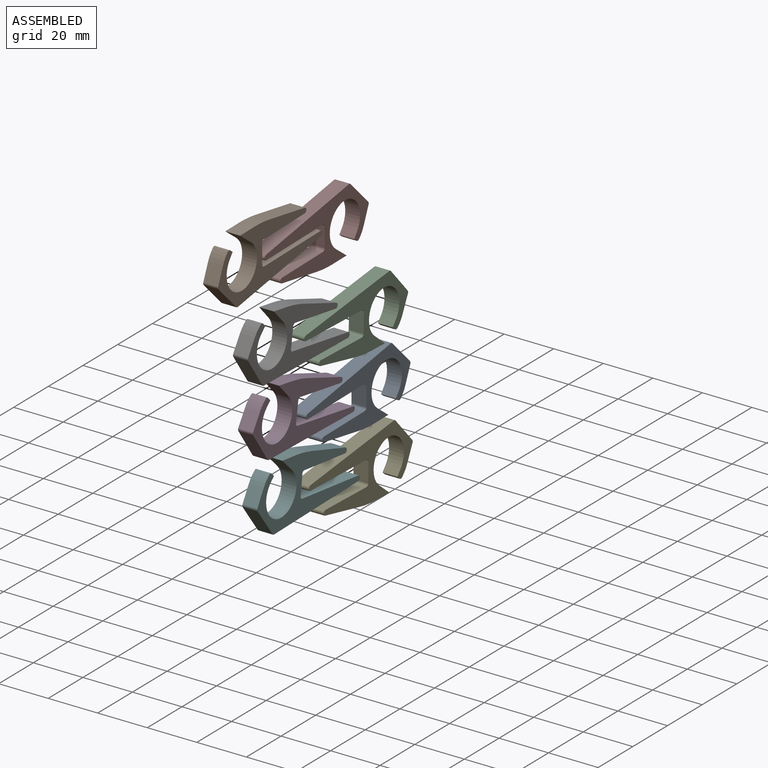
[diagram: assembled view]
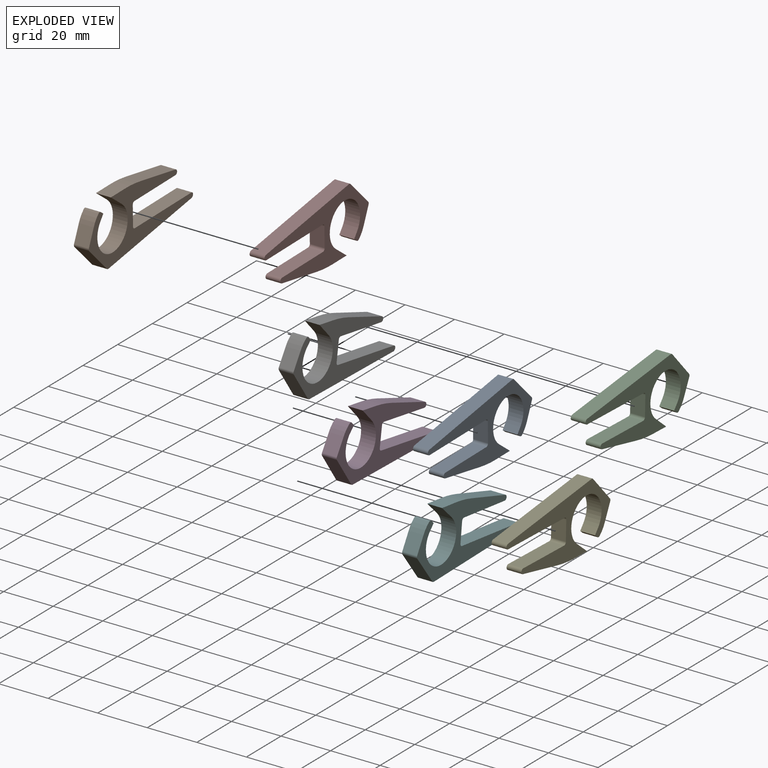
[diagram: exploded view]
GUIDED TOUR — MATED ASSEMBLY (Onshape document 57a725f205b6412f9cc70086, AutoMate assembly 57a725f205b6412f9cc70086_81580b5af0e51fa667f71f60_95b7362a37f1b61afd1b6911_default)

This assembly has 8 components, labeled P0..P7 below (a component is one placed occurrence of a part; the same part can appear more than once), held together by 1 mate. A mate is a constraint between two components; its type names the relative motion it leaves free:
  PLANAR — leaves sliding in the plane through the listed point (normal = the listed direction) and rotation about that normal free.
Axis/direction vectors are unit vectors and 'through' points are millimeter coordinates, both in the assembly's world frame.

MATES
  1. PLANAR "Planar 1": P1 <-> P7, direction (-1.000, 0.000, 0.000) through (-13.82, 75.87, 50.52) mm

ASSEMBLY ORDER
  1. P7 — the base component [order verified]
  2. P1 [order verified]
  3. P6 [order verified]
  4. P3 [order verified]
  5. P0 [order verified]
  6. P5 [order verified]
  7. P4 [order verified]
  8. P2 [order verified]
Order-tag legend:
  [order verified] — this step's position reverses a verified removal order: the component was checked to insert without passing through the ones already placed.

Of the 8 components, 8 carry the full construction recipe — the FeatureScript program that regenerates the part's solid from scratch; the rest are supplied as boundary geometry only.
Each toured component is shown spotlighted twice — in the assembled view, then in the exploded view, where a leader line traces a displaced component back to its assembled socket (saturated green if recipe-attached, orange if geometry-only; every other component desaturated gray) — followed by its recipe or geometry summary and the mates that hold it.
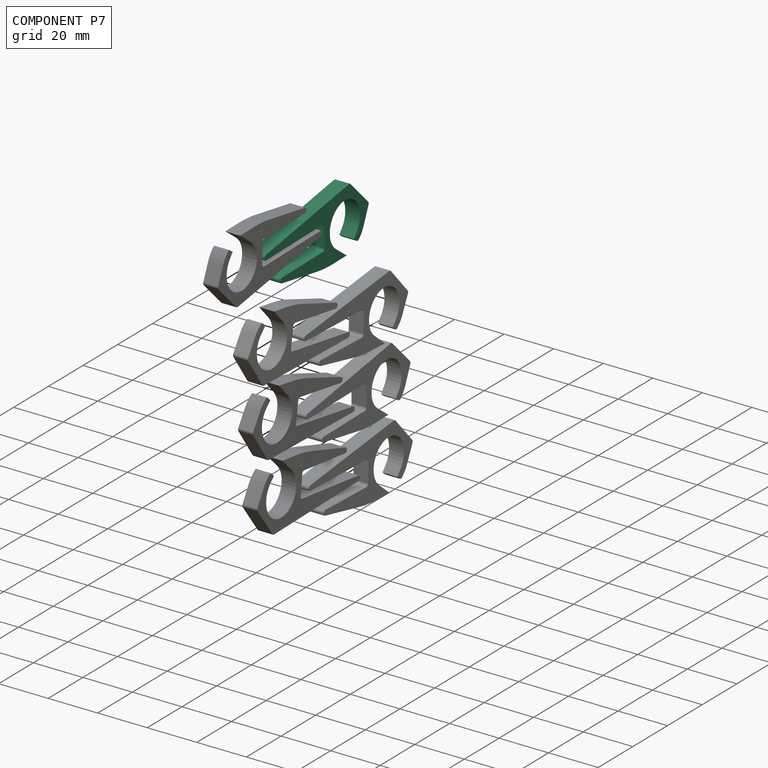
[diagram: component P7 — assembled]
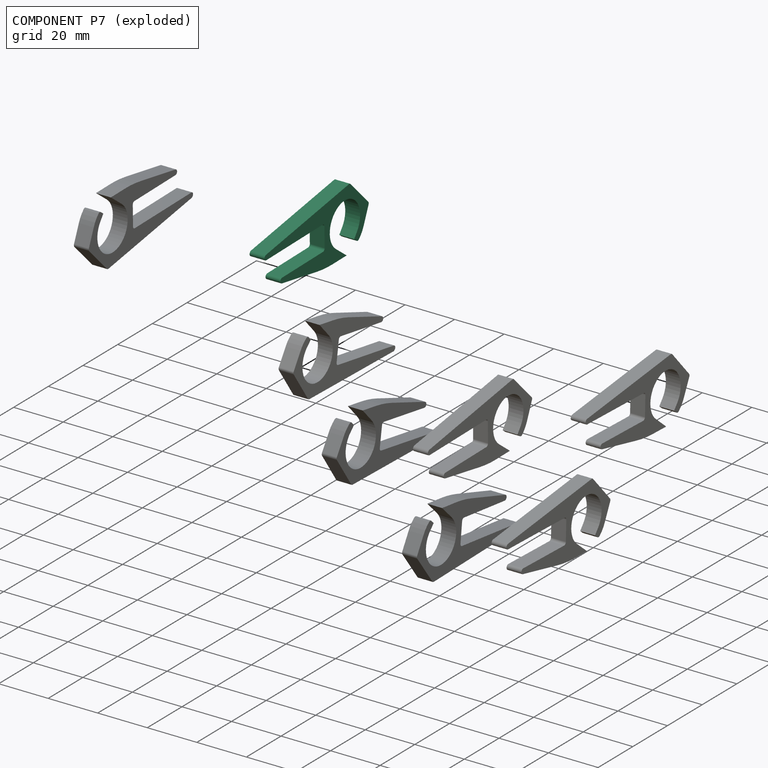
[diagram: component P7 — exploded]
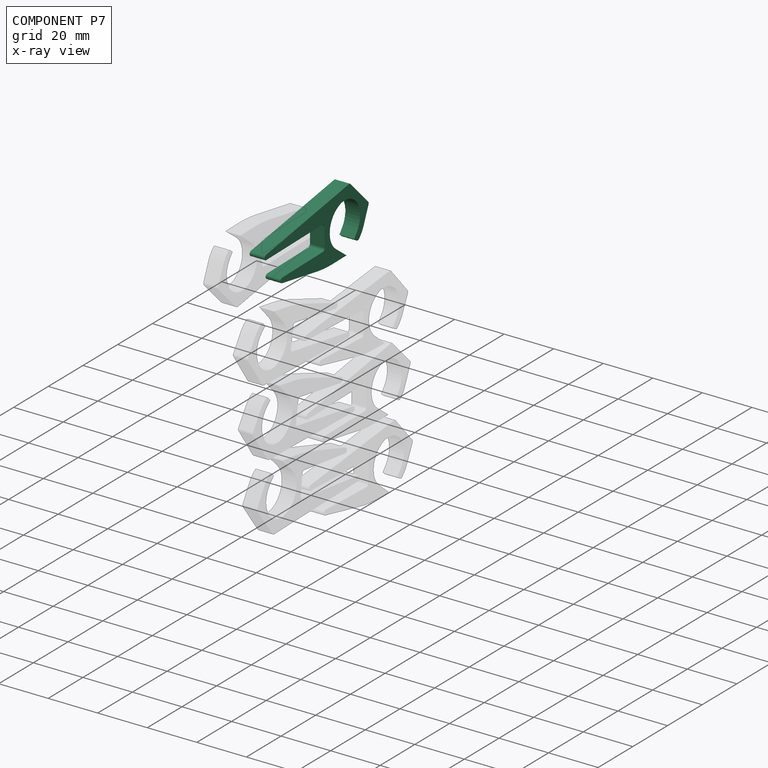
[diagram: component P7 — x-ray view]
COMPONENT P7 — same part as P0 (CADFS 00857104); its construction recipe is shown at P0.
Held by: PLANAR mate "Planar 1" to P1.
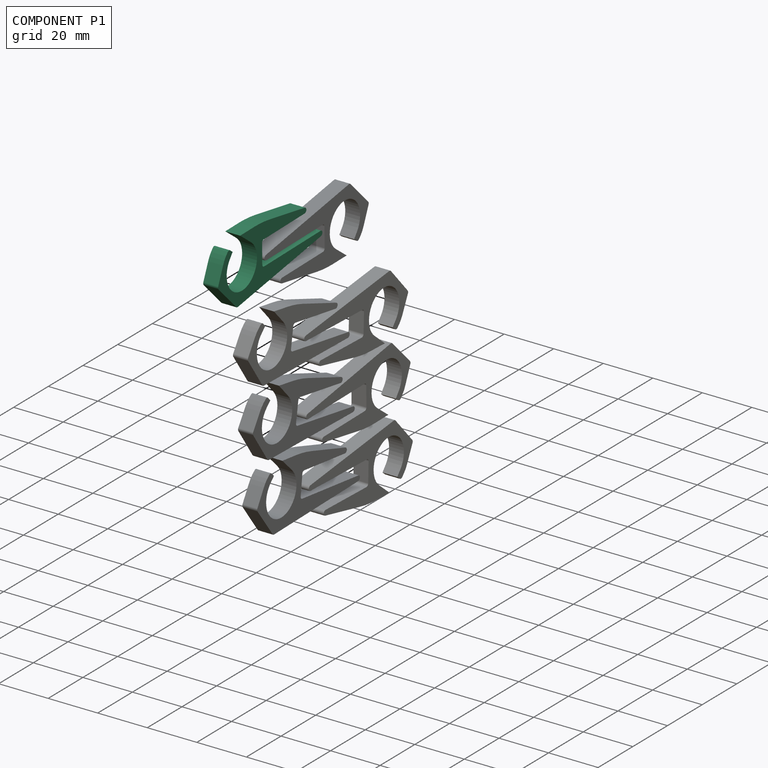
[diagram: component P1 — assembled]
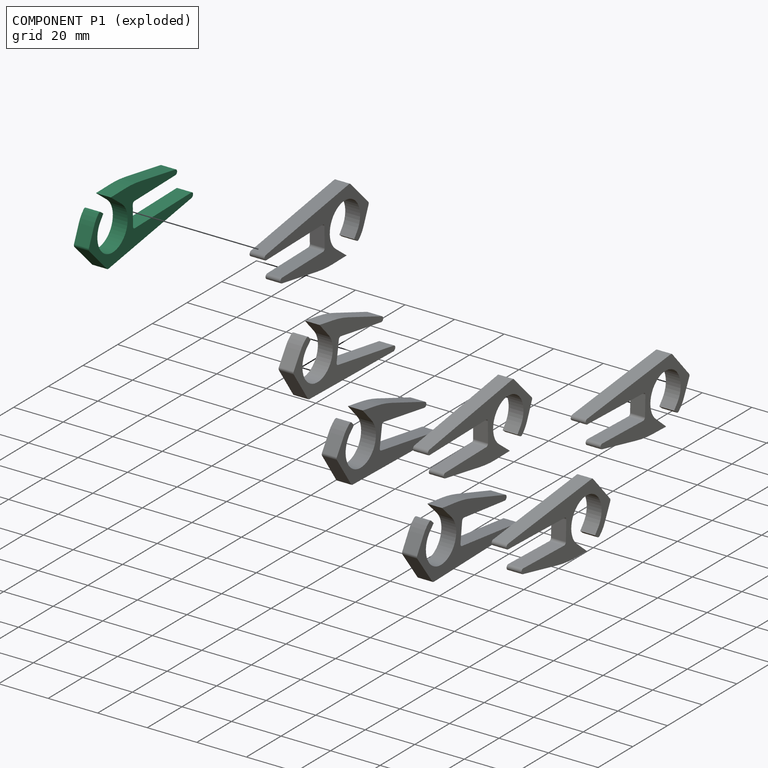
[diagram: component P1 — exploded]
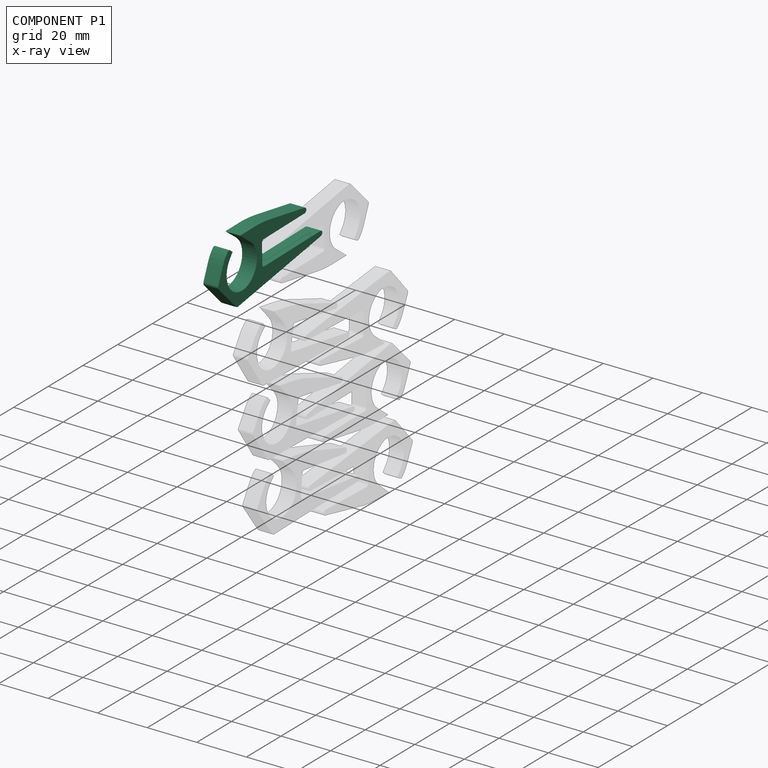
[diagram: component P1 — x-ray view]
COMPONENT P1 — same part as P0 (CADFS 00857104); its construction recipe is shown at P0.
Held by: PLANAR mate "Planar 1" to P7.
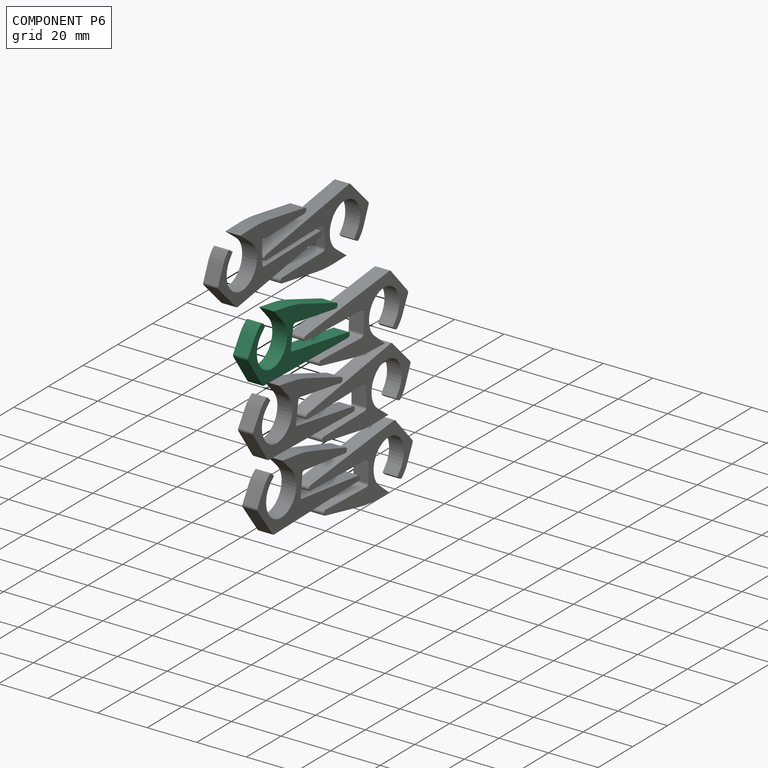
[diagram: component P6 — assembled]
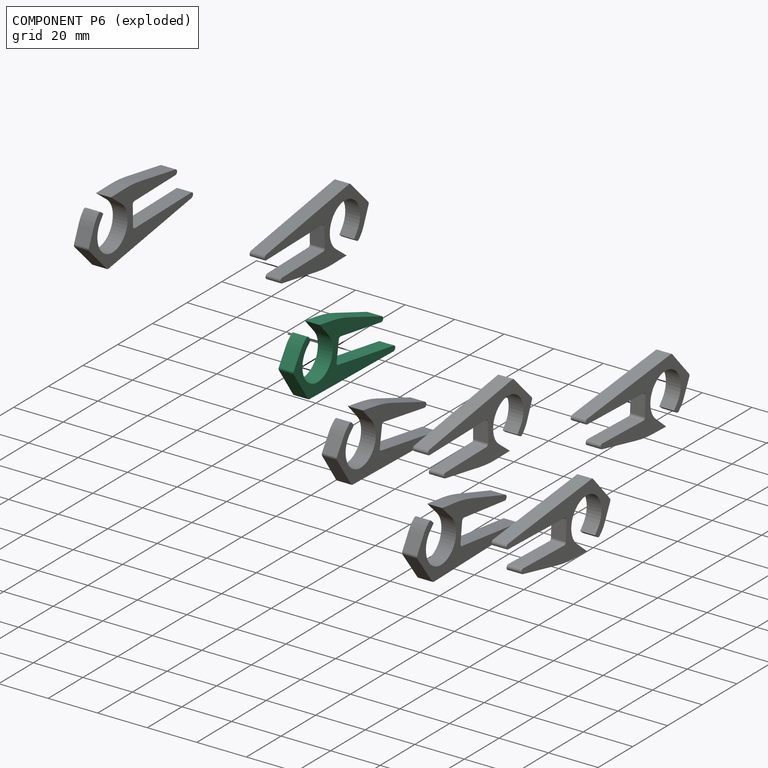
[diagram: component P6 — exploded]
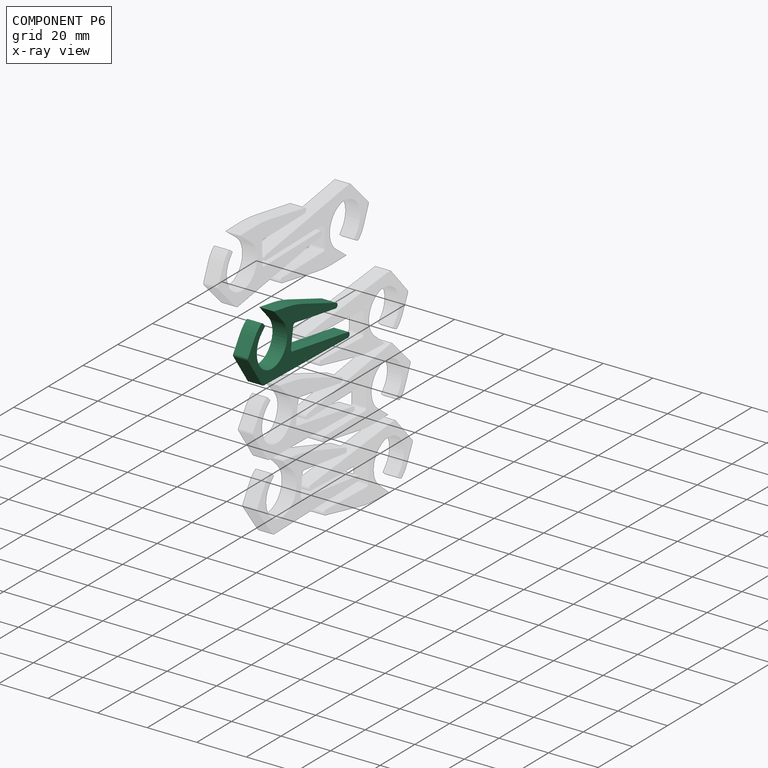
[diagram: component P6 — x-ray view]
COMPONENT P6 — same part as P0 (CADFS 00857104); its construction recipe is shown at P0.
Held by: no mates (free).
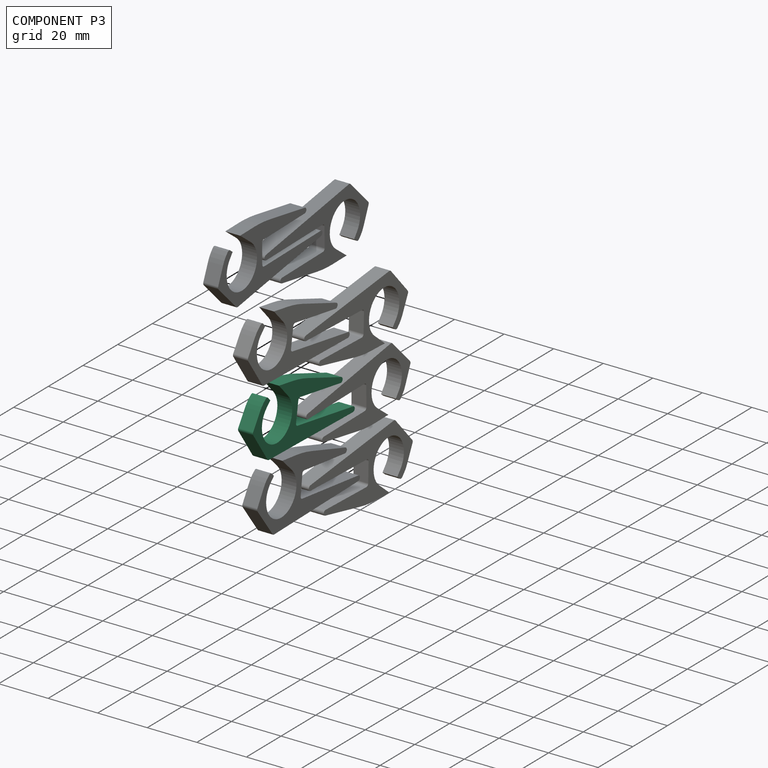
[diagram: component P3 — assembled]
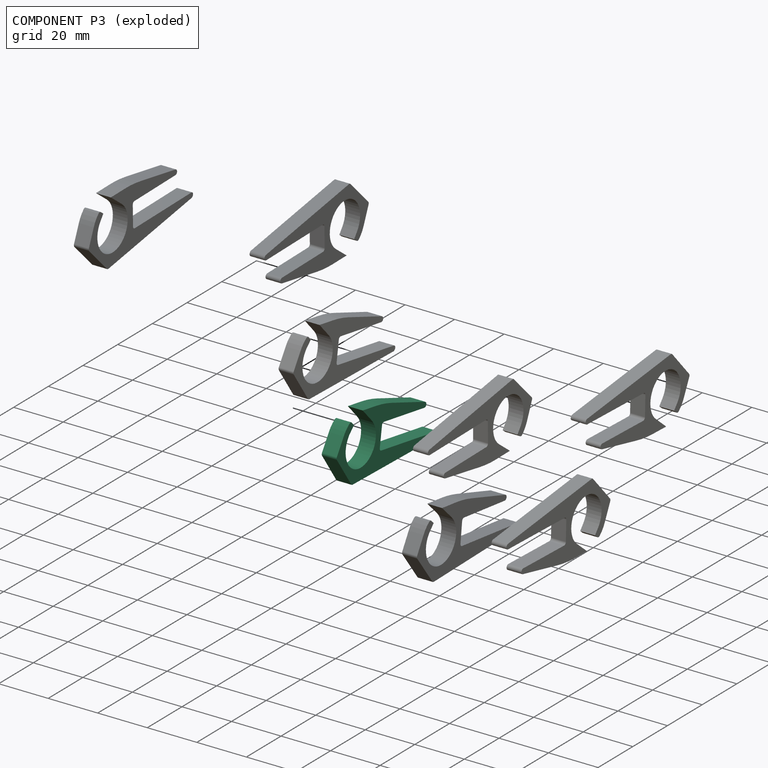
[diagram: component P3 — exploded]
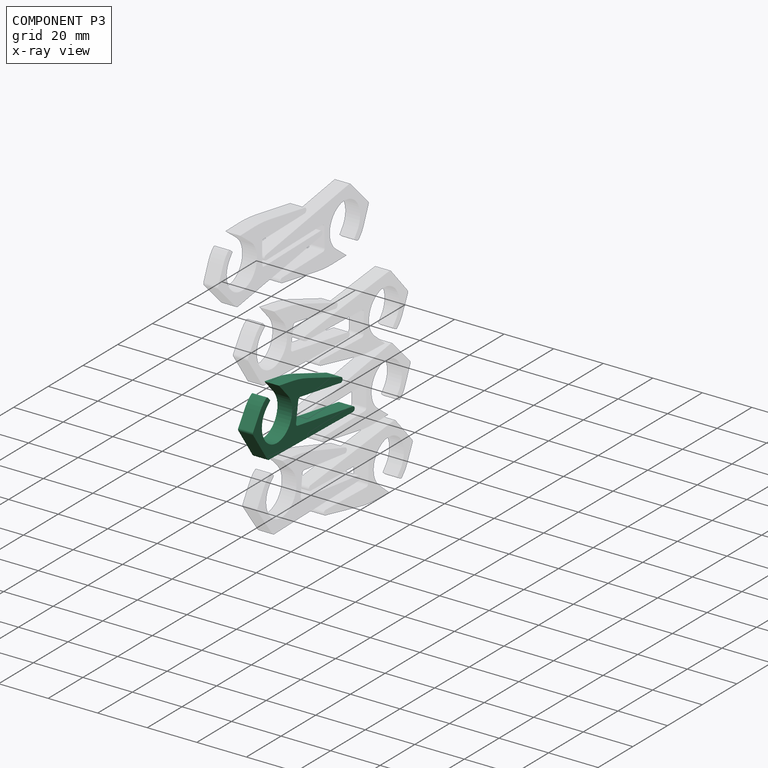
[diagram: component P3 — x-ray view]
COMPONENT P3 — same part as P0 (CADFS 00857104); its construction recipe is shown at P0.
Held by: no mates (free).
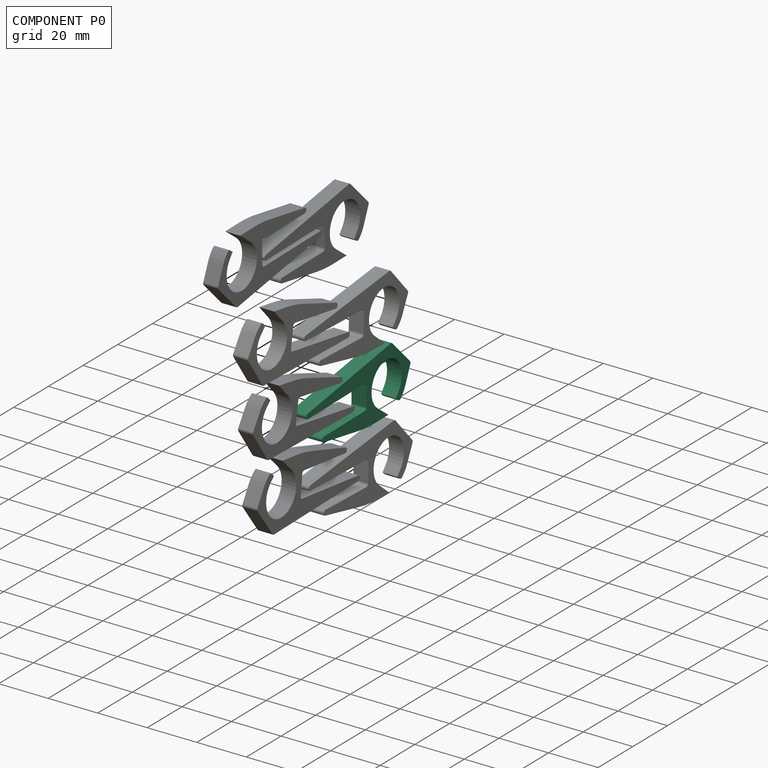
[diagram: component P0 — assembled]
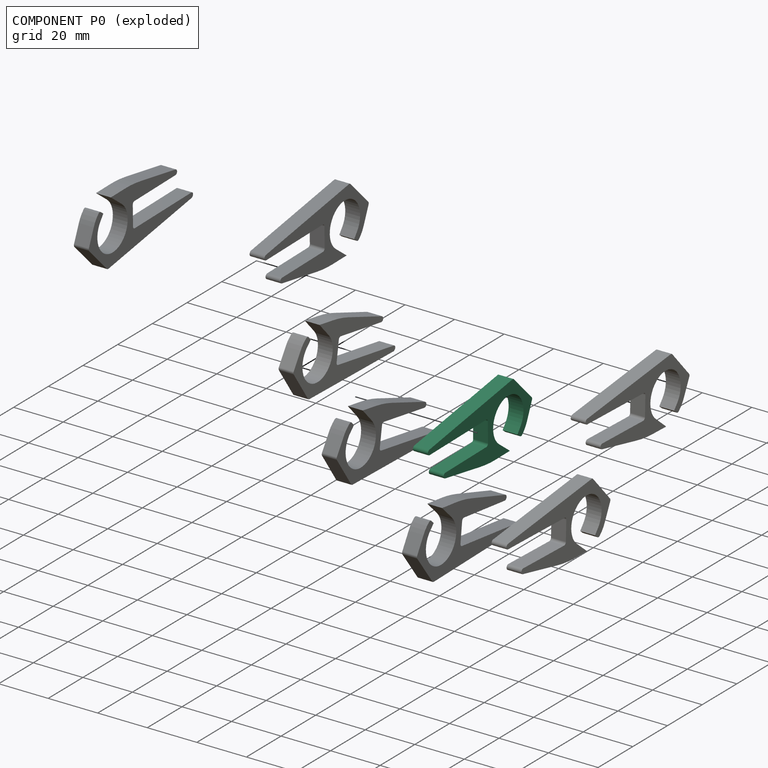
[diagram: component P0 — exploded]
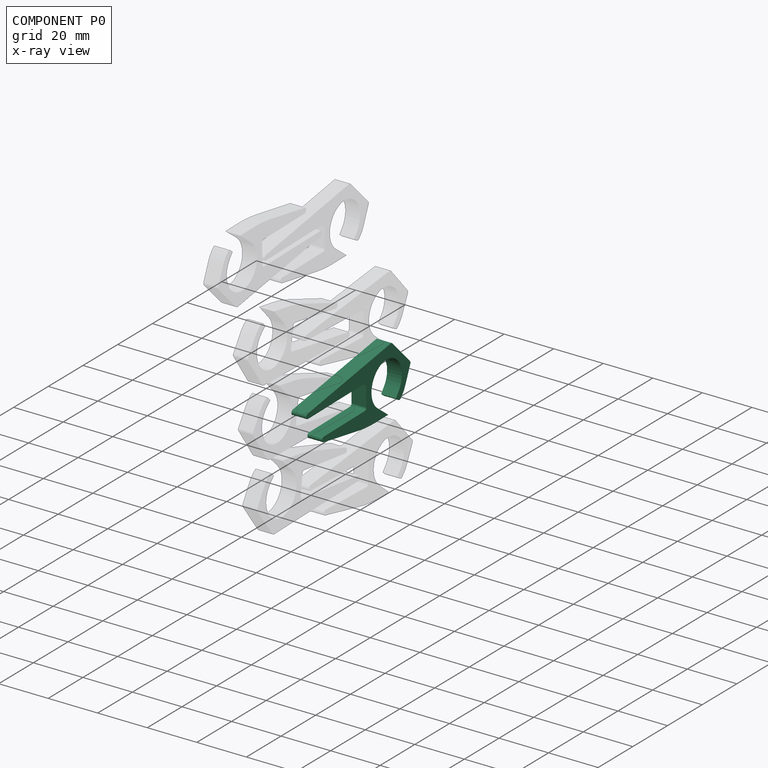
[diagram: component P0 — x-ray view]
COMPONENT P0 — recipe-attached (CADFS 00857104, mesh-verified: the recipe's output STEP matches this component's geometry to below the mesh-comparison resolution (tessellation chordal tolerance ~0.0997 mm)).
Held by: no mates (free).
Construction recipe (FeatureScript — the CAD program that rebuilds this solid; sketch coordinates are in the units given by the * unit suffixes, e.g. mm):

FeatureScript 1511;
import(path : "onshape/std/geometry.fs", version : "1511.0");
import(path : "onshape/std/common.fs", version : "1511.0");
const mm = millimeter;
const VERTEX = EntityType.VERTEX;
const EDGE = EntityType.EDGE;
const FACE = EntityType.FACE;
const BODY = EntityType.BODY;
function v(x, y){return vector(x, y);}
function OD(order){return orderDisambiguation(order);}
function OSD(set){return originalSetDisambiguation(set);}
function TD(topology){return topologyDisambiguation(topology);}
function TDD(query){return trueDependencyDisambiguation(query);}
function sQuery(a, b, c) {return sketchEntityQuery(a, b, c);}

annotation { "Feature Type Name" : "Feature", "Feature Type Description" : "" }
export const myFeature = defineFeature(function(context is Context, id is Id, definition is map)
    precondition{}
    {
        {
            var Q0;
            Q0=qCreatedBy(makeId("Right.planeOp"),FACE);
            var sketch = newSketch(context, id + "F0", { "sketchPlane" : qUnion([Q0])});
            skArc(sketch, "E0", {"start": v(-8.75, 0) * mm, "mid": v(6.19, -6.19) * mm, "end": v(0, 8.75) * mm});
            skLineSegment(sketch, "E1.bottom", {"start": v(0, 8.75) * mm, "end": v(-122.25, 8.75) * mm, "construction": true});
            skLineSegment(sketch, "E1.top", {"start": v(-11.75, 5.75) * mm, "end": v(-122.25, 5.75) * mm, "construction": true});
            skLineSegment(sketch, "E1.right", {"start": v(-122.25, 8.75) * mm, "end": v(-122.25, 5.75) * mm, "construction": true});
            skLineSegment(sketch, "E2", {"start": v(8.75, 0) * mm, "end": v(8.75, 20.78) * mm, "construction": true});
            skLineSegment(sketch, "E3", {"start": v(-8.75, 0) * mm, "end": v(-8.75, 2.75) * mm, "construction": true});
            skPoint(sketch, "E4.visualSharp", {"position": v(-8.75, 5.75) * mm});
            skArc(sketch, "E4.filletArc", {"start": v(-8.75, 2.75) * mm, "mid": v(-9.63, 4.87) * mm, "end": v(-11.75, 5.75) * mm, "construction": true});
            skLineSegment(sketch, "E5", {"start": v(-122.25, 5.75) * mm, "end": v(120.77, -23.2) * mm, "construction": true});
            skArc(sketch, "E6", {"start": v(-6.66, 9.68) * mm, "mid": v(-7.27, 9.23) * mm, "end": v(-7.84, 8.75) * mm});
            skLineSegment(sketch, "E7", {"start": v(0, 0) * mm, "end": v(69.32, 54.56) * mm, "construction": true});
            skLineSegment(sketch, "E8", {"start": v(6.93, 11.81) * mm, "end": v(25.46, 26.4) * mm});
            skLineSegment(sketch, "E9", {"start": v(13.11, 3.96) * mm, "end": v(38.72, 24.11) * mm});
            skLineSegment(sketch, "E10", {"start": v(-7.84, 8.75) * mm, "end": v(-1.7, 13.58) * mm});
            skLineSegment(sketch, "E11", {"start": v(6.76, 10.41) * mm, "end": v(11.7, 4.12) * mm});
            skArc(sketch, "E12.trimOffspring", {"start": v(9.23, 7.27) * mm, "mid": v(9, 7.56) * mm, "end": v(8.75, 7.84) * mm});
            skArc(sketch, "E13.filletArc", {"start": v(6.93, 11.81) * mm, "mid": v(6.55, 11.15) * mm, "end": v(6.76, 10.41) * mm});
            skArc(sketch, "E14.filletArc", {"start": v(11.7, 4.12) * mm, "mid": v(12.37, 3.75) * mm, "end": v(13.11, 3.96) * mm});
            skLineSegment(sketch, "E15", {"start": v(24.96, 28.18) * mm, "end": v(24.85, 28.2) * mm});
            skLineSegment(sketch, "E16", {"start": v(40.33, 23.2) * mm, "end": v(40.32, 23.13) * mm});
            skLineSegment(sketch, "E17", {"start": v(6.14, 18.64) * mm, "end": v(24.27, 28.09) * mm});
            skLineSegment(sketch, "E18", {"start": v(16.49, -1.95) * mm, "end": v(40.05, 22.55) * mm});
            skLineSegment(sketch, "E19", {"start": v(11.7, 4.12) * mm, "end": v(16.49, -1.95) * mm, "construction": true});
            skLineSegment(sketch, "E20", {"start": v(6.76, 10.41) * mm, "end": v(1.98, 16.48) * mm, "construction": true});
            skPoint(sketch, "E21.visualSharp", {"position": v(24.55, 28.23) * mm});
            skArc(sketch, "E21.filletArc", {"start": v(24.85, 28.2) * mm, "mid": v(24.56, 28.18) * mm, "end": v(24.27, 28.09) * mm});
            skPoint(sketch, "E22.visualSharp", {"position": v(27.36, 27.9) * mm});
            skArc(sketch, "E22.filletArc", {"start": v(25.46, 26.4) * mm, "mid": v(25.8, 27.46) * mm, "end": v(24.96, 28.18) * mm});
            skPoint(sketch, "E23.visualSharp", {"position": v(40.61, 25.6) * mm});
            skArc(sketch, "E23.filletArc", {"start": v(40.33, 23.2) * mm, "mid": v(39.82, 24.2) * mm, "end": v(38.72, 24.11) * mm});
            skPoint(sketch, "E24.visualSharp", {"position": v(40.28, 22.8) * mm});
            skArc(sketch, "E24.filletArc", {"start": v(40.05, 22.55) * mm, "mid": v(40.23, 22.82) * mm, "end": v(40.32, 23.13) * mm});
            skPoint(sketch, "E25.visualSharp", {"position": v(1.98, 16.48) * mm});
            skArc(sketch, "E25.filletArc", {"start": v(6.14, 18.64) * mm, "mid": v(2.1, 16.3) * mm, "end": v(-1.7, 13.58) * mm});
            skLineSegment(sketch, "E26", {"start": v(0, 8.75) * mm, "end": v(-7.84, 8.75) * mm});
            skLineSegment(sketch, "E27", {"start": v(-7.84, 8.75) * mm, "end": v(11.32, -12.63) * mm, "construction": true});
            skLineSegment(sketch, "E28", {"start": v(-122.25, 5.75) * mm, "end": v(120.48, -29.24) * mm, "construction": true});
            skLineSegment(sketch, "E29", {"start": v(16.49, -1.95) * mm, "end": v(6.46, -12.38) * mm});
            skLineSegment(sketch, "E30", {"start": v(5.6, -12.68) * mm, "end": v(-1.68, -11.63) * mm});
            skLineSegment(sketch, "E31", {"start": v(-1.68, -11.63) * mm, "end": v(0, 0) * mm, "construction": true});
            skLineSegment(sketch, "E32", {"start": v(-1.68, -11.63) * mm, "end": v(-8.8, -10.6) * mm});
            skLineSegment(sketch, "E33", {"start": v(-9.62, -9.86) * mm, "end": v(-11.4, -2.88) * mm});
            skLineSegment(sketch, "E34", {"start": v(-8.75, 0) * mm, "end": v(-8.75, 2.75) * mm});
            skLineSegment(sketch, "E35", {"start": v(-10.6, 2.75) * mm, "end": v(-8.75, 2.75) * mm});
            skArc(sketch, "E36.trimOffspring", {"start": v(-11.6, 1.91) * mm, "mid": v(-11.74, -0.5) * mm, "end": v(-11.4, -2.88) * mm});
            skPoint(sketch, "E37.visualSharp", {"position": v(-11.42, 2.75) * mm});
            skArc(sketch, "E37.filletArc", {"start": v(-10.6, 2.75) * mm, "mid": v(-11.25, 2.51) * mm, "end": v(-11.6, 1.91) * mm});
            skPoint(sketch, "E38.visualSharp", {"position": v(-9.46, -10.5) * mm});
            skArc(sketch, "E38.filletArc", {"start": v(-9.62, -9.86) * mm, "mid": v(-9.32, -10.36) * mm, "end": v(-8.8, -10.6) * mm});
            skPoint(sketch, "E39.visualSharp", {"position": v(6.1, -12.75) * mm});
            skArc(sketch, "E39.filletArc", {"start": v(5.6, -12.68) * mm, "mid": v(6.07, -12.63) * mm, "end": v(6.46, -12.38) * mm});
            skSolve(sketch);
        }
        {
            var Q0;
            Q0 = qSketchRegion(id + "F0", true);
            extrude(context, id + "F1", {"entities" : qUnion([Q0]), "depth" : 6 * mm, "offsetDistance" : 25 * mm});
        }
    });
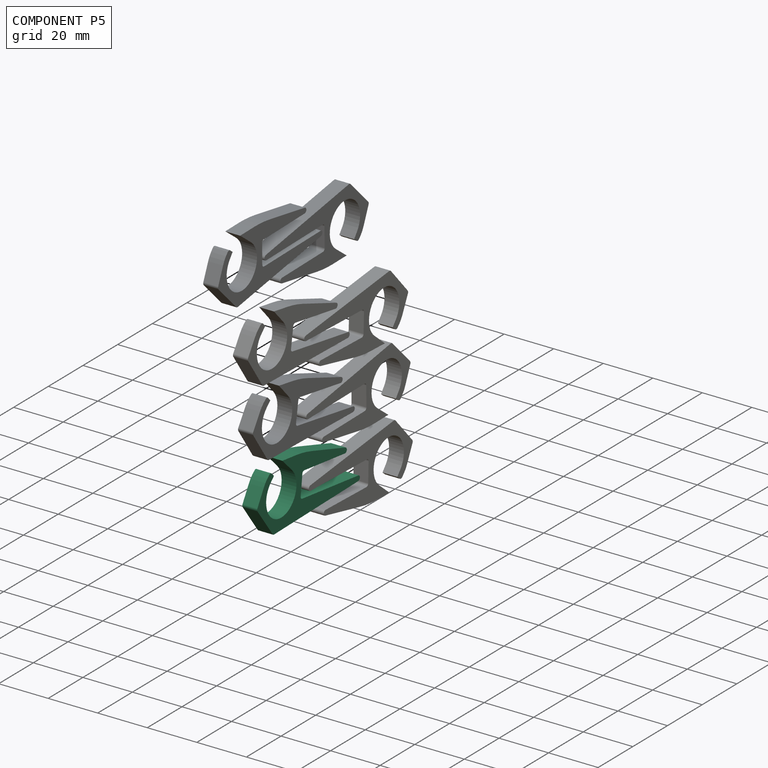
[diagram: component P5 — assembled]
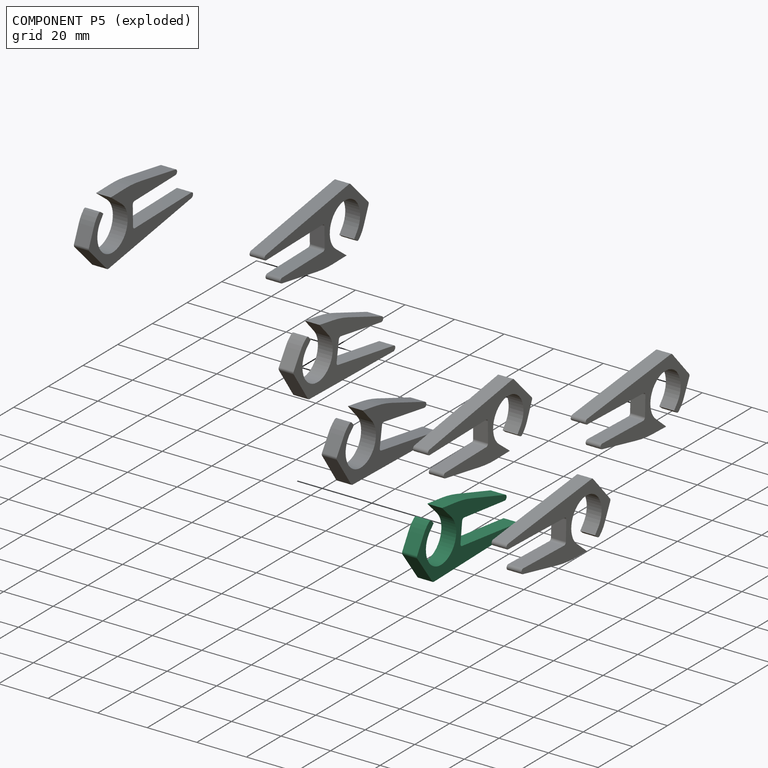
[diagram: component P5 — exploded]
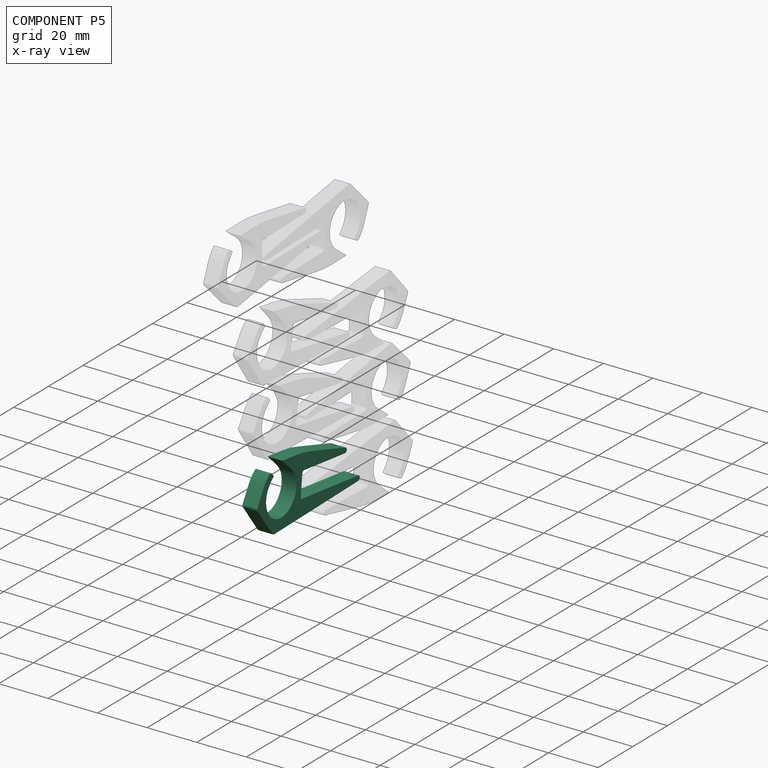
[diagram: component P5 — x-ray view]
COMPONENT P5 — same part as P0 (CADFS 00857104); its construction recipe is shown at P0.
Held by: no mates (free).
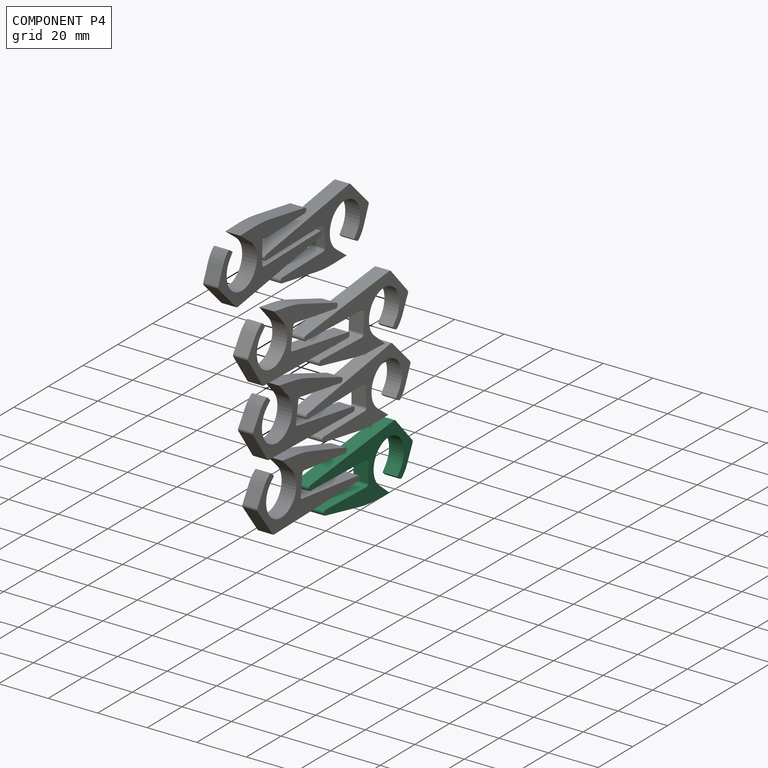
[diagram: component P4 — assembled]
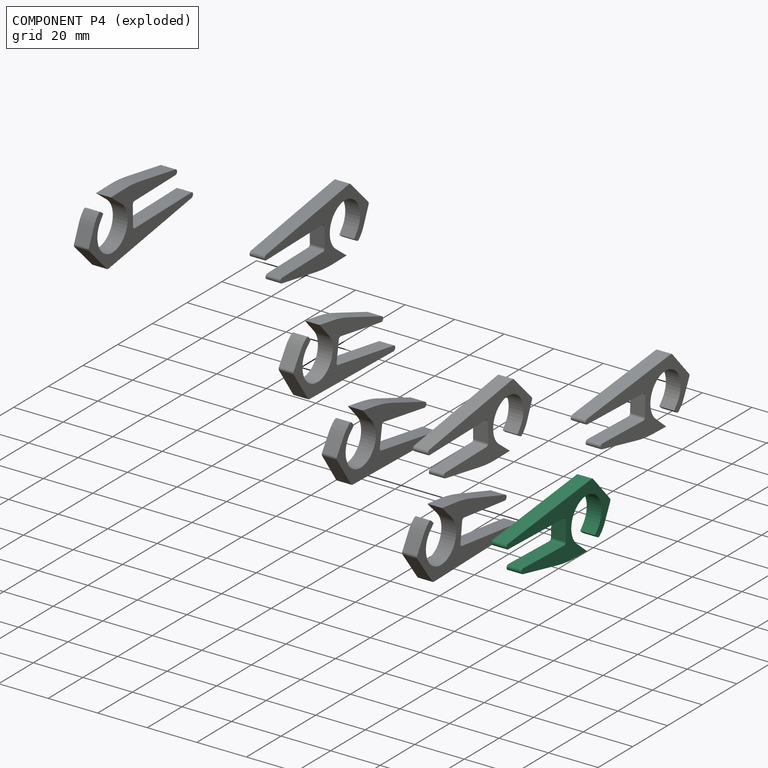
[diagram: component P4 — exploded]
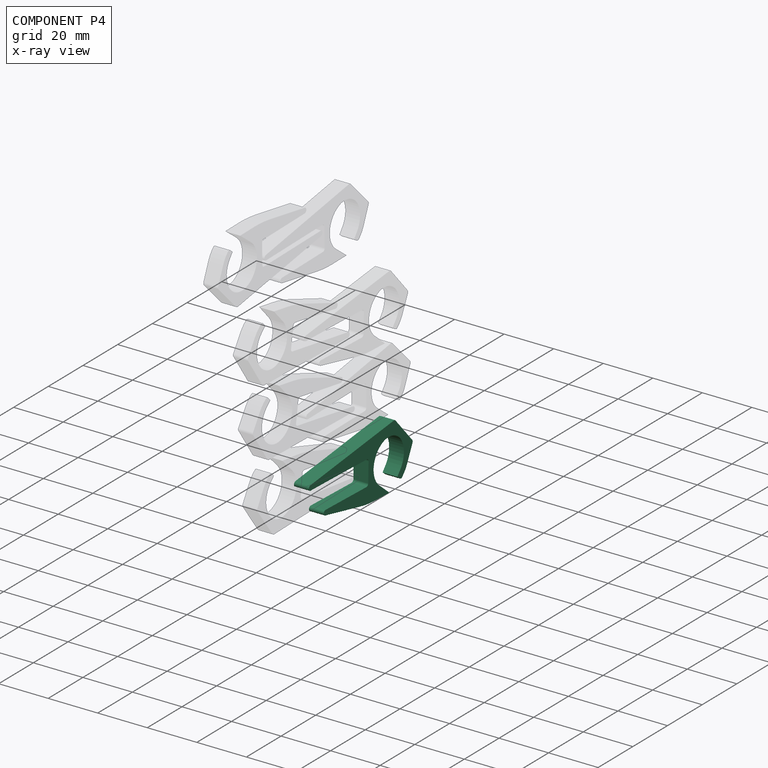
[diagram: component P4 — x-ray view]
COMPONENT P4 — same part as P0 (CADFS 00857104); its construction recipe is shown at P0.
Held by: no mates (free).
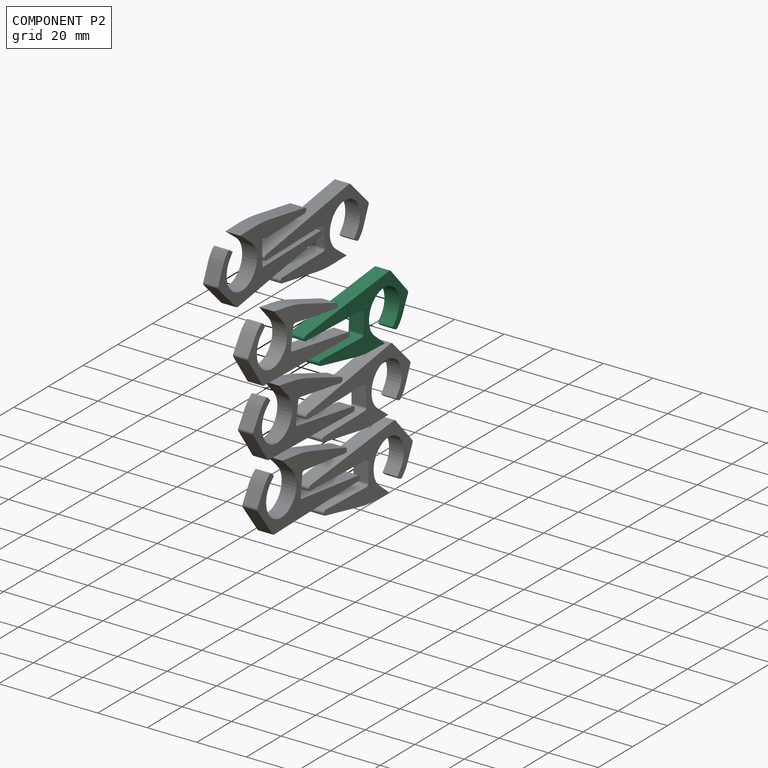
[diagram: component P2 — assembled]
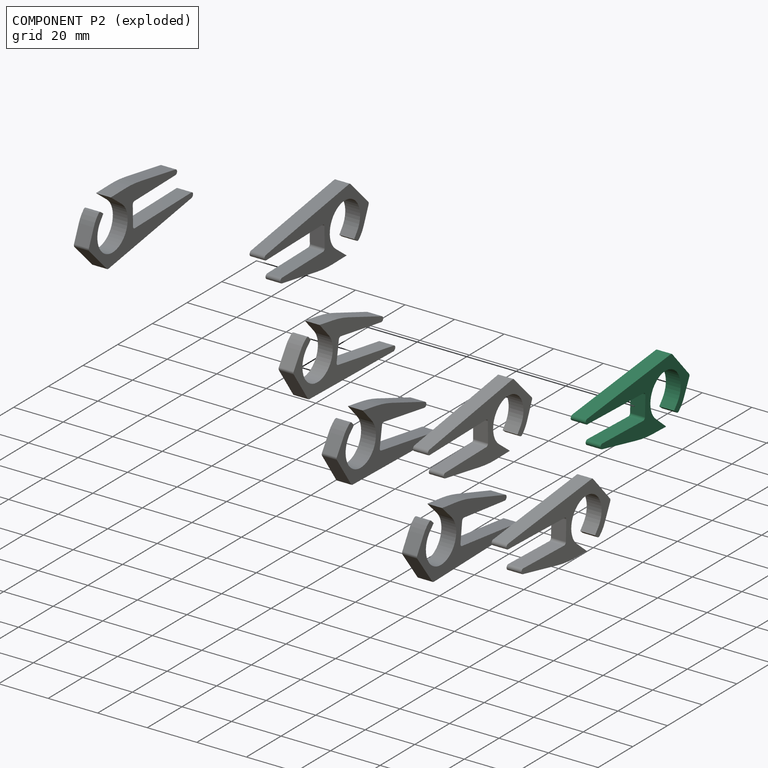
[diagram: component P2 — exploded]
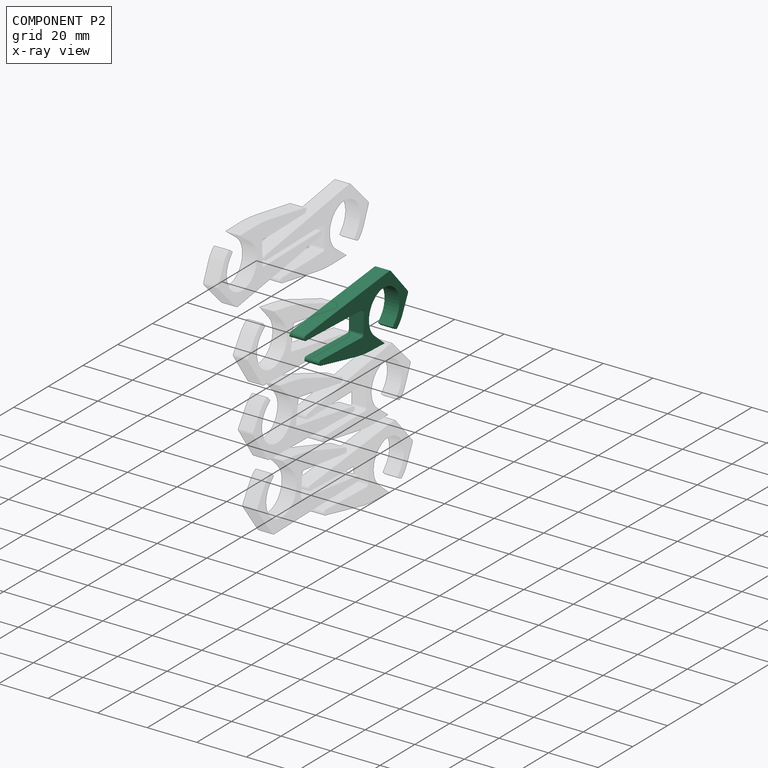
[diagram: component P2 — x-ray view]
COMPONENT P2 — same part as P0 (CADFS 00857104); its construction recipe is shown at P0.
Held by: no mates (free).
PROVENANCE & LICENSES
Assembly (occurrences, transforms, mates, per-part STEP geometry): AutoMate dataset, Zenodo record 7776208, CC0.
Construction recipes: CADFS (HuggingFace VladPyatov/CADFS, CC-BY-4.0, layered over the ABC dataset), FeatureScript reconstruction programs keyed by ABC model id.
Join: ABC meta listings map ABC model id -> Onshape documentId; within a shared document, parts are matched by geometric signature (bounding-box dims + volume at 0.1% relative tolerance, exact B-rep face/solid counts).
Verification: 8 of this assembly's 8 components carry a recipe attachment, and every attachment is mesh-verified: the CADFS STEP and the AutoMate member STEP were compared as meshes in their shared local frame (symmetric sampled-point-to-mesh distance); worst across the 8 attachments: below the mesh-comparison resolution (tessellation chordal tolerance ~0.0997 mm) on a 66 mm part.
Renders: orthographic iso camera (az 35 / el 25); the floor grid conveys scale (grid pitch printed in each image; no ruler). In the exploded view each component is displaced by its stored offset vector: the offsets alone carry the explosion direction (mate normal/axis signs are not orientation cues and do not encode it), and separation distances are assigned per mate-chain, not proportionally to assembly-order depth.
